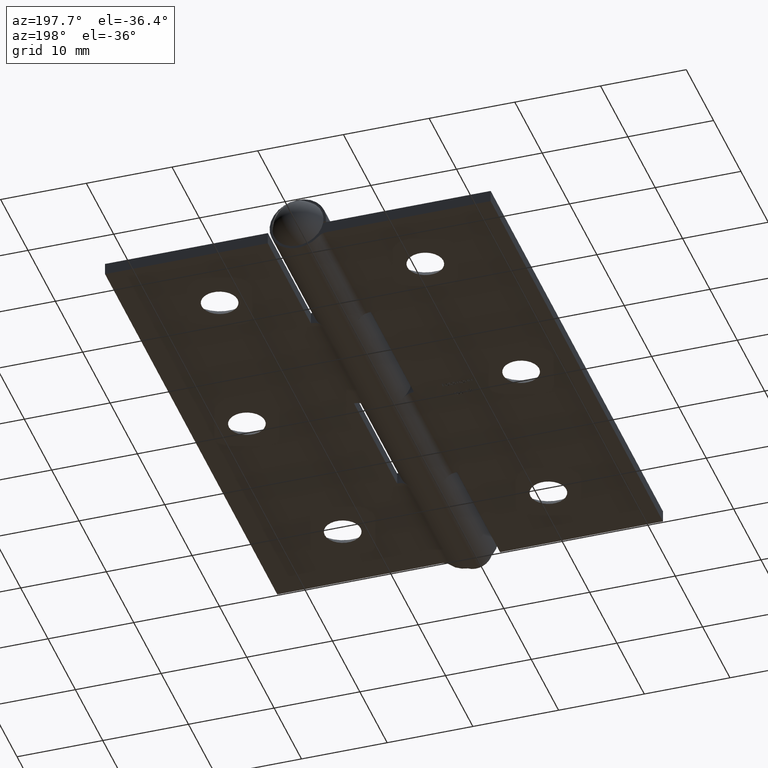
[diagram: clean part render]
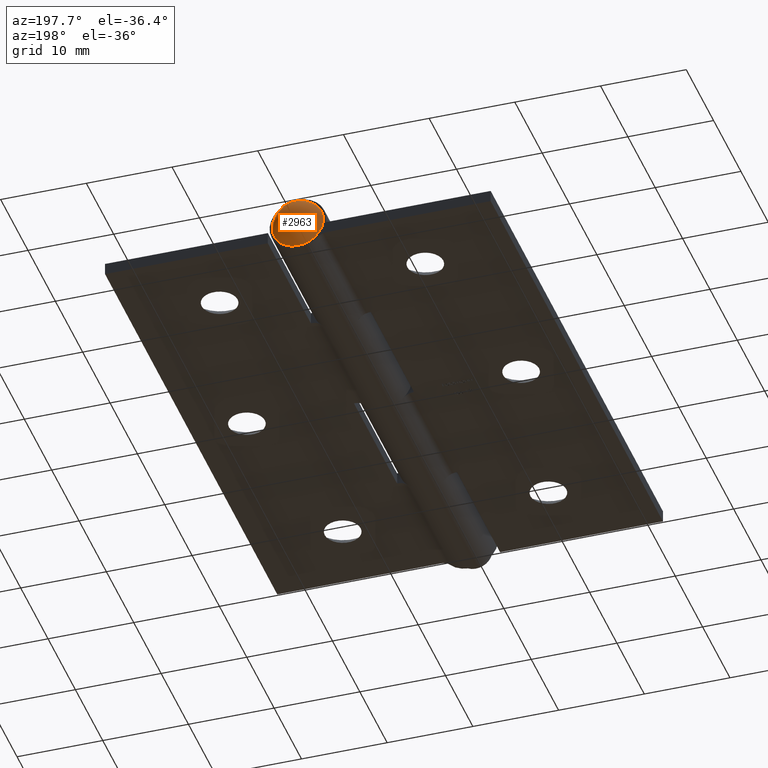
[diagram: same view with one face highlighted and labeled with its STEP entity id]
A machine part, auxiliary view. The second image highlights one B-rep face of the part: STEP entity #2963.
In plain terms, the highlighted spherical surface has radius 3.1455 mm.
Its self-contained STEP definition (entity closure, byte-faithful):
#962 = DIRECTION ( 'NONE',  ( 0.000000000000000000, 0.000000000000000000, -1.000000000000000000 ) ) ;
#2963 = ADVANCED_FACE ( 'NONE', ( #8099 ), #8532, .T. ) ;
#3375 = CIRCLE ( 'NONE', #7881, 3.000000000000000000 ) ;
#3521 = DIRECTION ( 'NONE',  ( 0.000000000000000000, 0.000000000000000000, 1.000000000000000000 ) ) ;
#3696 = EDGE_LOOP ( 'NONE', ( #3707 ) ) ;
#3707 = ORIENTED_EDGE ( 'NONE', *, *, #6093, .T. ) ;
#4372 = AXIS2_PLACEMENT_3D ( 'NONE', #6250, #962, #8987 ) ;
#5218 = CARTESIAN_POINT ( 'NONE',  ( 0.000000000000000000, 32.60000000000000142, 0.000000000000000000 ) ) ;
#6093 = EDGE_CURVE ( 'NONE', #6104, #6104, #3375, .T. ) ;
#6104 = VERTEX_POINT ( 'NONE', #7711 ) ;
#6250 = CARTESIAN_POINT ( 'NONE',  ( 0.000000000000000000, 31.65454545454546320, 0.000000000000000000 ) ) ;
#6974 = DIRECTION ( 'NONE',  ( -0.000000000000000000, 1.000000000000000000, -0.000000000000000000 ) ) ;
#7711 = CARTESIAN_POINT ( 'NONE',  ( 0.000000000000000000, 32.60000000000000142, 3.000000000000000000 ) ) ;
#7881 = AXIS2_PLACEMENT_3D ( 'NONE', #5218, #6974, #3521 ) ;
#8099 = FACE_OUTER_BOUND ( 'NONE', #3696, .T. ) ;
#8532 = SPHERICAL_SURFACE ( 'NONE', #4372, 3.145454545454542838 ) ;
#8987 = DIRECTION ( 'NONE',  ( 1.000000000000000000, 0.000000000000000000, 0.000000000000000000 ) ) ;